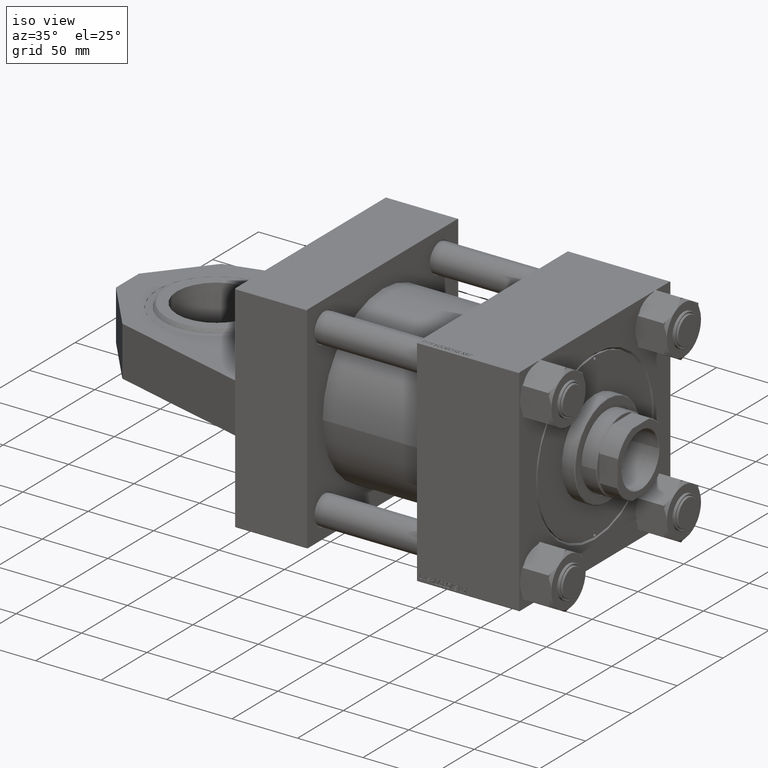
[diagram: clean part render]
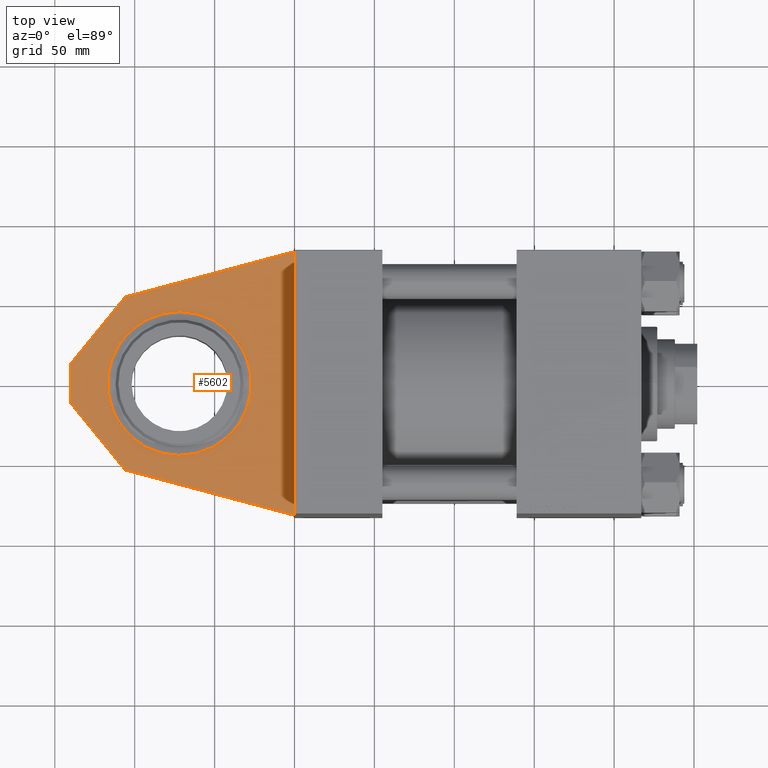
[diagram: tour spotlight — one face highlighted and labeled with its STEP entity id]
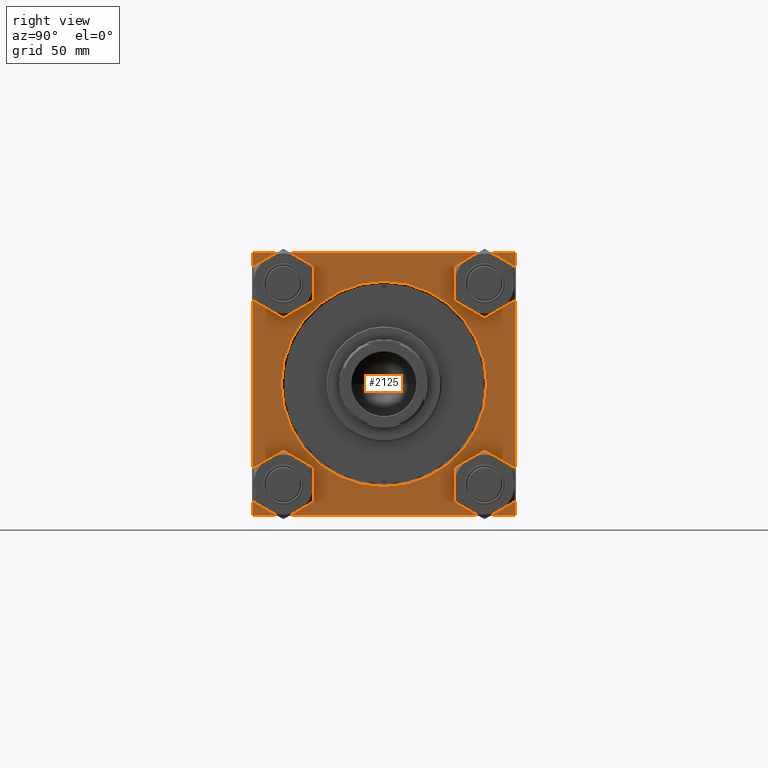
[diagram: tour spotlight — one face highlighted and labeled with its STEP entity id]
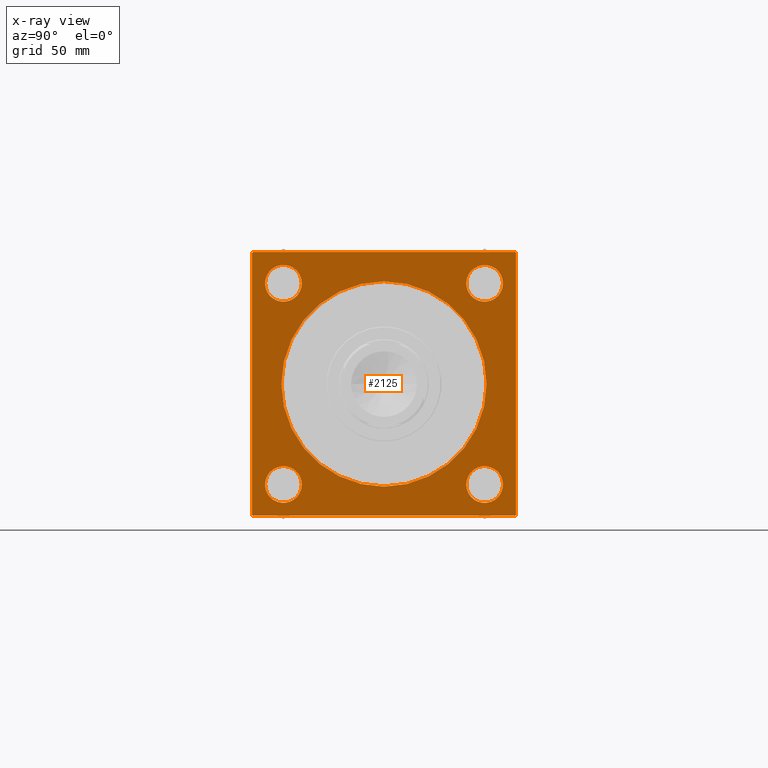
[diagram: x-ray of the same camera — body ghosted, this tour face saturated]
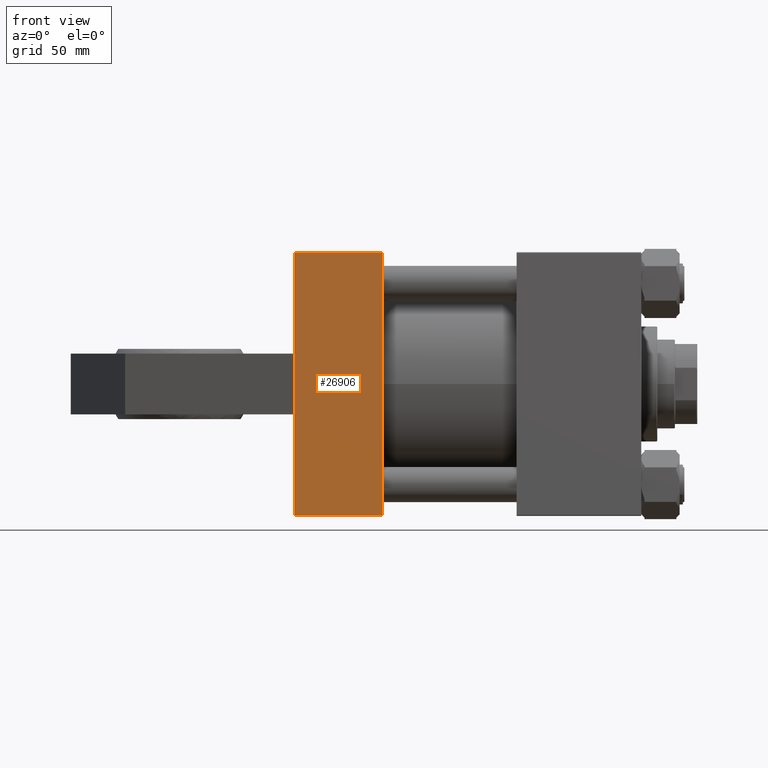
[diagram: tour spotlight — one face highlighted and labeled with its STEP entity id]
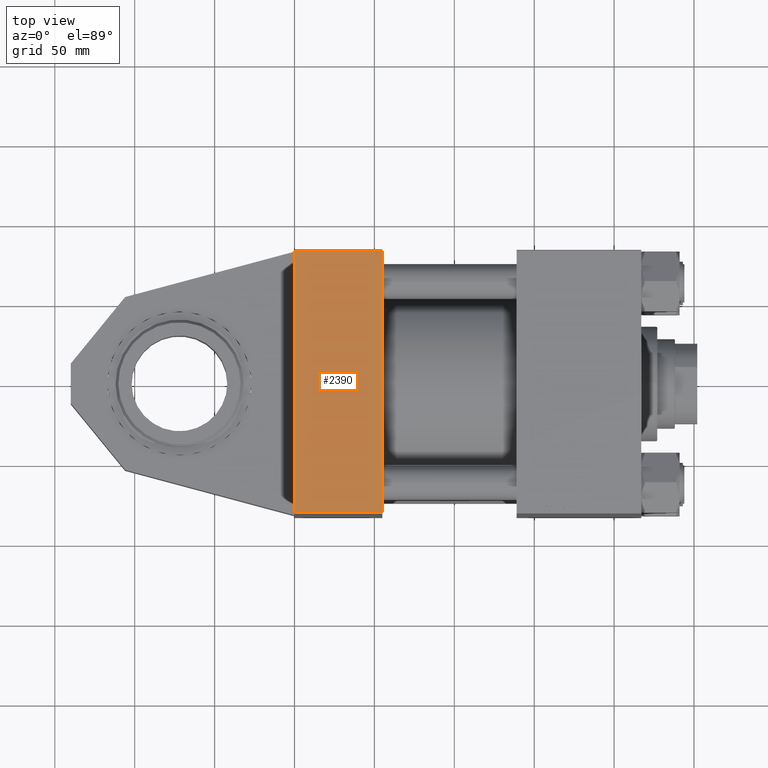
[diagram: tour spotlight — one face highlighted and labeled with its STEP entity id]
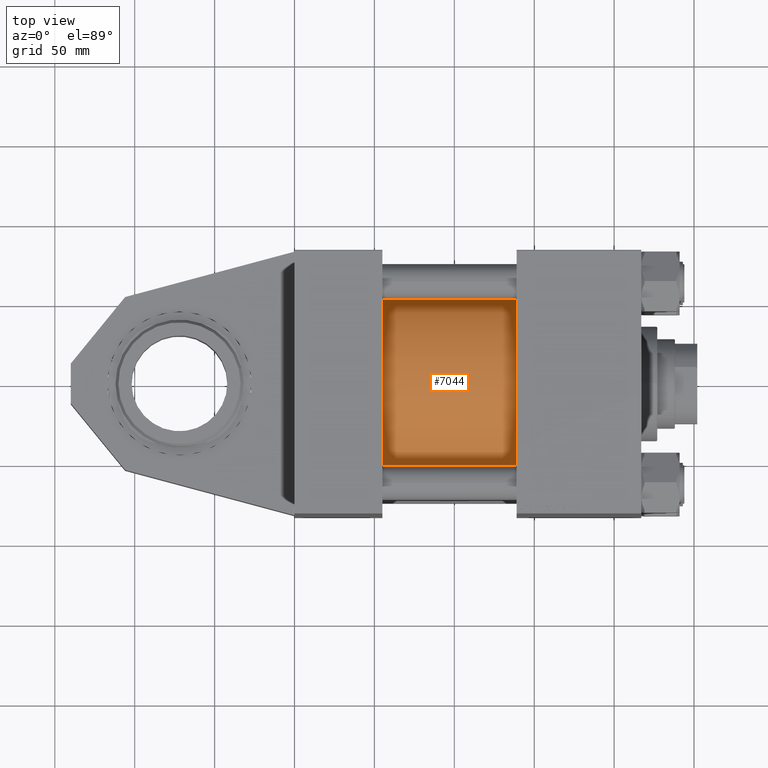
[diagram: tour spotlight — one face highlighted and labeled with its STEP entity id]
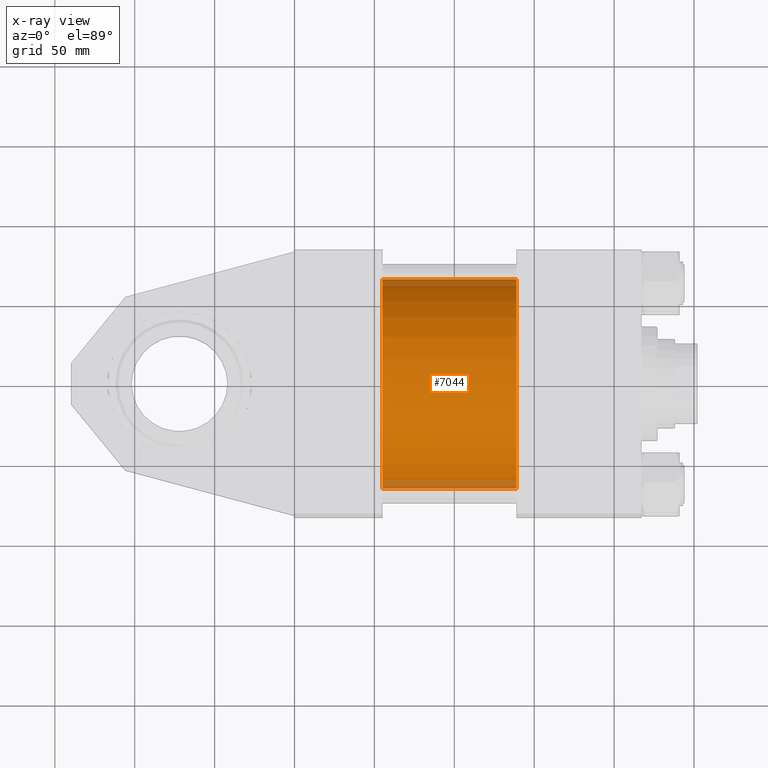
[diagram: x-ray of the same camera — body ghosted, this tour face saturated]
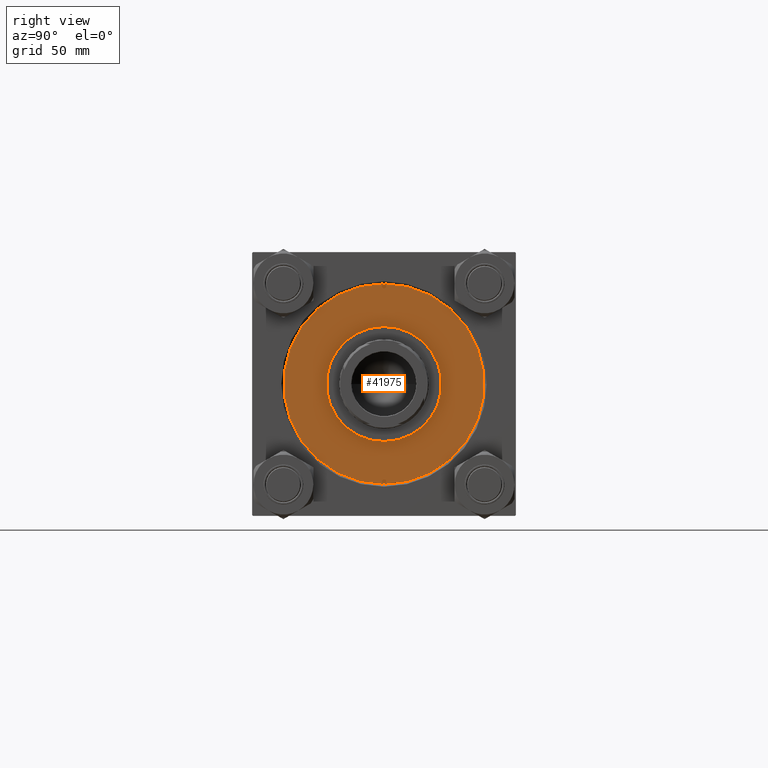
[diagram: tour spotlight — one face highlighted and labeled with its STEP entity id]
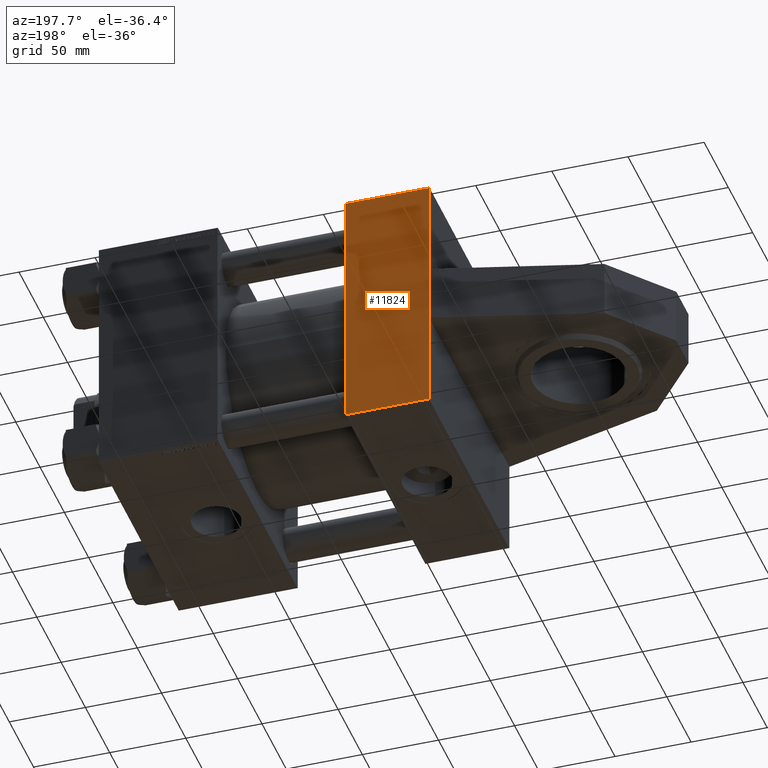
[diagram: tour spotlight — one face highlighted and labeled with its STEP entity id]
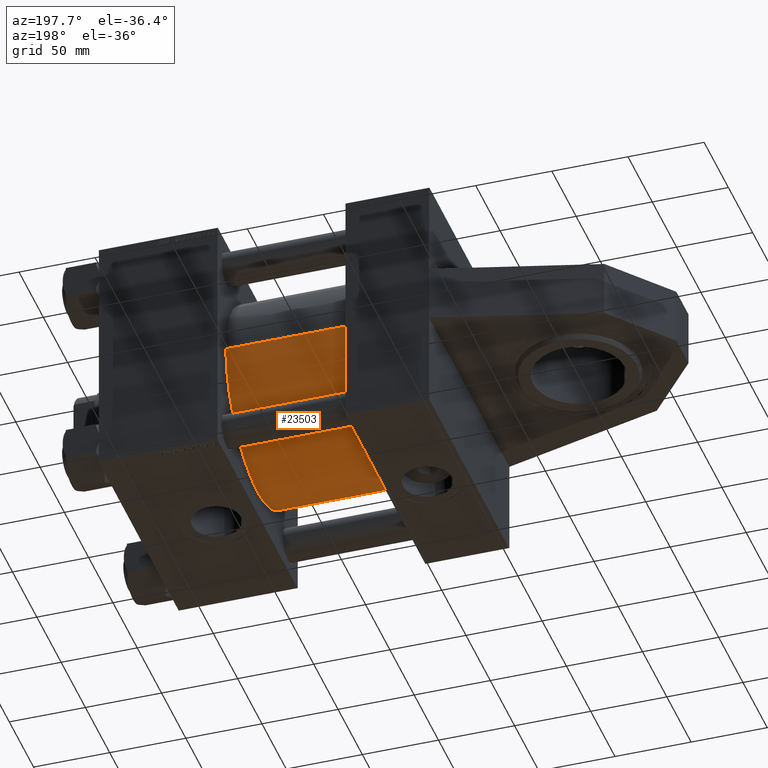
[diagram: tour spotlight — one face highlighted and labeled with its STEP entity id]
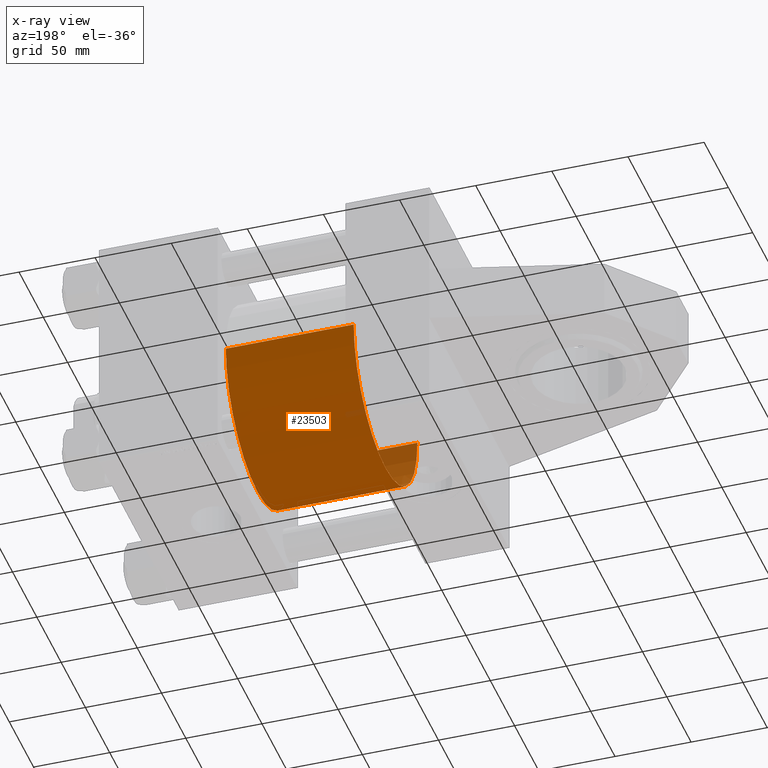
[diagram: x-ray of the same camera — body ghosted, this tour face saturated]
A machine part: a face-by-face anatomy tour. The part has 1193 B-rep faces; the first image is the clean iso view, then the 8 largest visible faces are spotlighted one at a time (largest first), each with its STEP entity span.

Face 1 — top view, entity #5602. In plain terms, the highlighted planar face has unit normal (0, 0, 1).
Definition (entity closure, byte-faithful):
#1561 = CARTESIAN_POINT ( 'NONE',  ( -72.00000000000000000, 19.00000000000000000, 1.040834085586084257E-14 ) ) ;
#1888 = VERTEX_POINT ( 'NONE', #20398 ) ;
#1943 = DIRECTION ( 'NONE',  ( 0.000000000000000000, 0.000000000000000000, 1.000000000000000000 ) ) ;
#2130 = VERTEX_POINT ( 'NONE', #27751 ) ;
#2480 = LINE ( 'NONE', #30198, #21303 ) ;
#3027 = CIRCLE ( 'NONE', #17781, 45.00000000000000000 ) ;
#3231 = VERTEX_POINT ( 'NONE', #6912 ) ;
#3421 = LINE ( 'NONE', #23934, #29330 ) ;
#3424 = VECTOR ( 'NONE', #12537, 1000.000000000000114 ) ;
#4038 = ORIENTED_EDGE ( 'NONE', *, *, #40837, .T. ) ;
#5602 = ADVANCED_FACE ( 'NONE', ( #15378, #35892 ), #46704, .T. ) ;
#5608 = ORIENTED_EDGE ( 'NONE', *, *, #48832, .T. ) ;
#6912 = CARTESIAN_POINT ( 'NONE',  ( -72.00000000000000000, 19.00000000000000000, -45.00000000000000000 ) ) ;
#7690 = ORIENTED_EDGE ( 'NONE', *, *, #18570, .T. ) ;
#7791 = DIRECTION ( 'NONE',  ( 0.9659258262890672020, 0.000000000000000000, 0.2588190451025246808 ) ) ;
#9179 = CARTESIAN_POINT ( 'NONE',  ( -140.0000000000000000, 19.00000000000000000, 12.50000000000001599 ) ) ;
#9255 = EDGE_CURVE ( 'NONE', #42104, #16631, #20677, .T. ) ;
#10416 = CARTESIAN_POINT ( 'NONE',  ( 0.000000000000000000, 19.00000000000000000, 82.50000000000001421 ) ) ;
#12166 = EDGE_CURVE ( 'NONE', #41112, #1888, #3421, .T. ) ;
#12537 = DIRECTION ( 'NONE',  ( 0.6328561221851576324, 0.000000000000000000, 0.7742694160386065505 ) ) ;
#12998 = CARTESIAN_POINT ( 'NONE',  ( -72.00000000000000000, 19.00000000000000000, 1.040834085586084257E-14 ) ) ;
#13247 = EDGE_LOOP ( 'NONE', ( #28508, #26433 ) ) ;
#13505 = DIRECTION ( 'NONE',  ( 0.000000000000000000, 1.000000000000000000, 0.000000000000000000 ) ) ;
#15378 = FACE_BOUND ( 'NONE', #13247, .T. ) ;
#16577 = CARTESIAN_POINT ( 'NONE',  ( -106.0000000000000142, 19.00000000000000000, -54.09738560230051974 ) ) ;
#16631 = VERTEX_POINT ( 'NONE', #36350 ) ;
#17383 = LINE ( 'NONE', #9179, #3424 ) ;
#17406 = LINE ( 'NONE', #37172, #32582 ) ;
#17781 = AXIS2_PLACEMENT_3D ( 'NONE', #12998, #13505, #1943 ) ;
#18376 = DIRECTION ( 'NONE',  ( 0.000000000000000000, 0.000000000000000000, -1.000000000000000000 ) ) ;
#18570 = EDGE_CURVE ( 'NONE', #1888, #34092, #29673, .T. ) ;
#20398 = CARTESIAN_POINT ( 'NONE',  ( 0.000000000000000000, 19.00000000000000000, 82.50000000000001421 ) ) ;
#20677 = LINE ( 'NONE', #27880, #21857 ) ;
#21303 = VECTOR ( 'NONE', #49458, 1000.000000000000000 ) ;
#21857 = VECTOR ( 'NONE', #35337, 1000.000000000000000 ) ;
#22171 = EDGE_CURVE ( 'NONE', #2130, #3231, #45143, .T. ) ;
#22920 = CARTESIAN_POINT ( 'NONE',  ( 0.000000000000000000, 19.00000000000000000, -82.50000000000000000 ) ) ;
#22994 = AXIS2_PLACEMENT_3D ( 'NONE', #1561, #33106, #36977 ) ;
#23934 = CARTESIAN_POINT ( 'NONE',  ( -106.0000000000000142, 19.00000000000000000, 54.09738560230054816 ) ) ;
#24197 = AXIS2_PLACEMENT_3D ( 'NONE', #43363, #35403, #39256 ) ;
#26433 = ORIENTED_EDGE ( 'NONE', *, *, #29546, .F. ) ;
#27751 = CARTESIAN_POINT ( 'NONE',  ( -72.00000000000000000, 19.00000000000000000, 45.00000000000001421 ) ) ;
#27880 = CARTESIAN_POINT ( 'NONE',  ( -140.0000000000000000, 19.00000000000000000, -12.49999999999998579 ) ) ;
#28508 = ORIENTED_EDGE ( 'NONE', *, *, #22171, .F. ) ;
#28962 = DIRECTION ( 'NONE',  ( -0.9659258262890672020, -0.000000000000000000, 0.2588190451025247918 ) ) ;
#29330 = VECTOR ( 'NONE', #7791, 1000.000000000000000 ) ;
#29546 = EDGE_CURVE ( 'NONE', #3231, #2130, #3027, .T. ) ;
#29673 = LINE ( 'NONE', #10416, #38464 ) ;
#29784 = ORIENTED_EDGE ( 'NONE', *, *, #36009, .T. ) ;
#29875 = CARTESIAN_POINT ( 'NONE',  ( -106.0000000000000142, 19.00000000000000000, 54.09738560230054816 ) ) ;
#30198 = CARTESIAN_POINT ( 'NONE',  ( -140.0000000000000000, 19.00000000000000000, -12.49999999999998579 ) ) ;
#32582 = VECTOR ( 'NONE', #28962, 1000.000000000000000 ) ;
#33106 = DIRECTION ( 'NONE',  ( 0.000000000000000000, 1.000000000000000000, 0.000000000000000000 ) ) ;
#34092 = VERTEX_POINT ( 'NONE', #22920 ) ;
#35337 = DIRECTION ( 'NONE',  ( -0.6328561221851576324, -0.000000000000000000, 0.7742694160386065505 ) ) ;
#35403 = DIRECTION ( 'NONE',  ( -0.000000000000000000, 1.000000000000000000, 0.000000000000000000 ) ) ;
#35892 = FACE_OUTER_BOUND ( 'NONE', #41885, .T. ) ;
#36009 = EDGE_CURVE ( 'NONE', #34092, #42104, #17406, .T. ) ;
#36350 = CARTESIAN_POINT ( 'NONE',  ( -140.0000000000000000, 19.00000000000000000, -12.49999999999998579 ) ) ;
#36977 = DIRECTION ( 'NONE',  ( 0.000000000000000000, 0.000000000000000000, 1.000000000000000000 ) ) ;
#37172 = CARTESIAN_POINT ( 'NONE',  ( -106.0000000000000142, 19.00000000000000000, -54.09738560230051974 ) ) ;
#38464 = VECTOR ( 'NONE', #18376, 1000.000000000000000 ) ;
#39256 = DIRECTION ( 'NONE',  ( 0.000000000000000000, -0.000000000000000000, 1.000000000000000000 ) ) ;
#40298 = ORIENTED_EDGE ( 'NONE', *, *, #12166, .T. ) ;
#40837 = EDGE_CURVE ( 'NONE', #16631, #47127, #2480, .T. ) ;
#41112 = VERTEX_POINT ( 'NONE', #29875 ) ;
#41885 = EDGE_LOOP ( 'NONE', ( #5608, #40298, #7690, #29784, #42408, #4038 ) ) ;
#42104 = VERTEX_POINT ( 'NONE', #16577 ) ;
#42408 = ORIENTED_EDGE ( 'NONE', *, *, #9255, .T. ) ;
#43363 = CARTESIAN_POINT ( 'NONE',  ( 0.000000000000000000, 19.00000000000000000, 0.000000000000000000 ) ) ;
#45143 = CIRCLE ( 'NONE', #22994, 45.00000000000000000 ) ;
#46704 = PLANE ( 'NONE',  #24197 ) ;
#47127 = VERTEX_POINT ( 'NONE', #50494 ) ;
#48832 = EDGE_CURVE ( 'NONE', #47127, #41112, #17383, .T. ) ;
#49458 = DIRECTION ( 'NONE',  ( 0.000000000000000000, 0.000000000000000000, 1.000000000000000000 ) ) ;
#50494 = CARTESIAN_POINT ( 'NONE',  ( -140.0000000000000000, 19.00000000000000000, 12.50000000000001599 ) ) ;

Face 2 — right view, entity #2125. An x-ray twin of the same camera follows (body ghosted, this face saturated) — the face is partly hidden behind the body. In plain terms, the highlighted planar face has unit normal (-1, -0, 0).
Definition (entity closure, byte-faithful):
#274 = VERTEX_POINT ( 'NONE', #44950 ) ;
#332 = ORIENTED_EDGE ( 'NONE', *, *, #4217, .T. ) ;
#410 = EDGE_CURVE ( 'NONE', #8727, #34787, #43037, .T. ) ;
#1286 = VECTOR ( 'NONE', #46509, 1000.000000000000000 ) ;
#1564 = DIRECTION ( 'NONE',  ( -0.000000000000000000, 0.7071067811865474617, 0.7071067811865474617 ) ) ;
#1625 = CARTESIAN_POINT ( 'NONE',  ( 217.0000000000000284, -82.49999999999997158, 82.49999999999997158 ) ) ;
#1711 = CARTESIAN_POINT ( 'NONE',  ( 217.0000000000000284, 82.50000000000001421, -82.00000000000005684 ) ) ;
#2125 = ADVANCED_FACE ( 'NONE', ( #8502, #24131, #15701, #47266, #24382, #31341 ), #4639, .F. ) ;
#2162 = VERTEX_POINT ( 'NONE', #43670 ) ;
#2542 = AXIS2_PLACEMENT_3D ( 'NONE', #3274, #7384, #18930 ) ;
#2778 = CARTESIAN_POINT ( 'NONE',  ( 217.0000000000000284, 62.95000000000000284, -62.95000000000000284 ) ) ;
#3029 = DIRECTION ( 'NONE',  ( -1.000000000000000000, -0.000000000000000000, 0.000000000000000000 ) ) ;
#3274 = CARTESIAN_POINT ( 'NONE',  ( 217.0000000000000284, 62.95000000000000284, -62.95000000000000284 ) ) ;
#4171 = LINE ( 'NONE', #20080, #17485 ) ;
#4217 = EDGE_CURVE ( 'NONE', #15046, #37520, #20566, .T. ) ;
#4639 = PLANE ( 'NONE',  #11816 ) ;
#4640 = CARTESIAN_POINT ( 'NONE',  ( 217.0000000000000284, 7.868355684521741158E-15, 64.24999999999997158 ) ) ;
#4782 = EDGE_LOOP ( 'NONE', ( #6643, #32309 ) ) ;
#4856 = CARTESIAN_POINT ( 'NONE',  ( 217.0000000000000284, 0.000000000000000000, 0.000000000000000000 ) ) ;
#5140 = CARTESIAN_POINT ( 'NONE',  ( 217.0000000000000284, 0.000000000000000000, 0.000000000000000000 ) ) ;
#5321 = ORIENTED_EDGE ( 'NONE', *, *, #23581, .T. ) ;
#6423 = EDGE_CURVE ( 'NONE', #15046, #17958, #14940, .T. ) ;
#6643 = ORIENTED_EDGE ( 'NONE', *, *, #31759, .T. ) ;
#7172 = EDGE_CURVE ( 'NONE', #11798, #25430, #36531, .T. ) ;
#7316 = DIRECTION ( 'NONE',  ( 0.000000000000000000, 0.000000000000000000, 1.000000000000000000 ) ) ;
#7338 = ORIENTED_EDGE ( 'NONE', *, *, #15463, .T. ) ;
#7384 = DIRECTION ( 'NONE',  ( -1.000000000000000000, -0.000000000000000000, 0.000000000000000000 ) ) ;
#8196 = ORIENTED_EDGE ( 'NONE', *, *, #29011, .T. ) ;
#8304 = CARTESIAN_POINT ( 'NONE',  ( 217.0000000000000284, 0.000000000000000000, 0.000000000000000000 ) ) ;
#8502 = FACE_BOUND ( 'NONE', #38094, .T. ) ;
#8550 = DIRECTION ( 'NONE',  ( 0.000000000000000000, 0.000000000000000000, 1.000000000000000000 ) ) ;
#8727 = VERTEX_POINT ( 'NONE', #4640 ) ;
#8942 = CARTESIAN_POINT ( 'NONE',  ( 217.0000000000000284, 62.95000000000000284, 74.44999999999996021 ) ) ;
#9261 = CARTESIAN_POINT ( 'NONE',  ( 217.0000000000000284, 82.50000000000001421, -82.00000000000005684 ) ) ;
#9350 = LINE ( 'NONE', #17801, #13417 ) ;
#9580 = VECTOR ( 'NONE', #34974, 1000.000000000000000 ) ;
#9660 = AXIS2_PLACEMENT_3D ( 'NONE', #8304, #43718, #8550 ) ;
#11232 = AXIS2_PLACEMENT_3D ( 'NONE', #2778, #3029, #26369 ) ;
#11486 = DIRECTION ( 'NONE',  ( 0.000000000000000000, 0.000000000000000000, 1.000000000000000000 ) ) ;
#11494 = ORIENTED_EDGE ( 'NONE', *, *, #48077, .T. ) ;
#11497 = CARTESIAN_POINT ( 'NONE',  ( 217.0000000000000284, 62.95000000000000284, -51.45000000000005258 ) ) ;
#11798 = VERTEX_POINT ( 'NONE', #43520 ) ;
#11816 = AXIS2_PLACEMENT_3D ( 'NONE', #5140, #19805, #35202 ) ;
#12750 = CARTESIAN_POINT ( 'NONE',  ( 217.0000000000000284, 82.50000000000001421, 82.50000000000000000 ) ) ;
#13417 = VECTOR ( 'NONE', #44523, 999.9999999999998863 ) ;
#13990 = VERTEX_POINT ( 'NONE', #11497 ) ;
#14726 = DIRECTION ( 'NONE',  ( -1.000000000000000000, -0.000000000000000000, 0.000000000000000000 ) ) ;
#14940 = LINE ( 'NONE', #15454, #1286 ) ;
#15046 = VERTEX_POINT ( 'NONE', #33016 ) ;
#15435 = EDGE_LOOP ( 'NONE', ( #18912, #8196 ) ) ;
#15454 = CARTESIAN_POINT ( 'NONE',  ( 217.0000000000000284, 82.50000000000001421, -82.50000000000002842 ) ) ;
#15463 = EDGE_CURVE ( 'NONE', #49989, #2162, #26128, .T. ) ;
#15701 = FACE_BOUND ( 'NONE', #30693, .T. ) ;
#15732 = DIRECTION ( 'NONE',  ( 0.000000000000000000, -0.7071067811865474617, 0.7071067811865474617 ) ) ;
#15990 = ORIENTED_EDGE ( 'NONE', *, *, #26081, .T. ) ;
#16323 = CARTESIAN_POINT ( 'NONE',  ( 217.0000000000000284, -62.94999999999998863, 62.94999999999998863 ) ) ;
#16701 = ORIENTED_EDGE ( 'NONE', *, *, #32527, .T. ) ;
#17280 = DIRECTION ( 'NONE',  ( 0.000000000000000000, -1.682156097916903834E-16, -1.000000000000000000 ) ) ;
#17485 = VECTOR ( 'NONE', #15732, 1000.000000000000114 ) ;
#17704 = EDGE_CURVE ( 'NONE', #42545, #50785, #40883, .T. ) ;
#17801 = CARTESIAN_POINT ( 'NONE',  ( 217.0000000000000284, -82.00000000000004263, -82.50000000000002842 ) ) ;
#17958 = VERTEX_POINT ( 'NONE', #29341 ) ;
#18113 = DIRECTION ( 'NONE',  ( -1.000000000000000000, -0.000000000000000000, 0.000000000000000000 ) ) ;
#18462 = DIRECTION ( 'NONE',  ( -0.000000000000000000, -0.7071067811865573427, -0.7071067811865376918 ) ) ;
#18912 = ORIENTED_EDGE ( 'NONE', *, *, #48445, .T. ) ;
#18930 = DIRECTION ( 'NONE',  ( 0.000000000000000000, 0.000000000000000000, 1.000000000000000000 ) ) ;
#19805 = DIRECTION ( 'NONE',  ( -1.000000000000000000, -0.000000000000000000, 0.000000000000000000 ) ) ;
#19831 = VECTOR ( 'NONE', #18462, 1000.000000000000114 ) ;
#19955 = ORIENTED_EDGE ( 'NONE', *, *, #17704, .T. ) ;
#20023 = DIRECTION ( 'NONE',  ( 0.000000000000000000, 0.000000000000000000, 1.000000000000000000 ) ) ;
#20080 = CARTESIAN_POINT ( 'NONE',  ( 217.0000000000000284, 82.00000000000004263, 82.50000000000000000 ) ) ;
#20566 = LINE ( 'NONE', #9261, #35632 ) ;
#20777 = ORIENTED_EDGE ( 'NONE', *, *, #30158, .T. ) ;
#21403 = AXIS2_PLACEMENT_3D ( 'NONE', #46661, #22515, #11486 ) ;
#21405 = ORIENTED_EDGE ( 'NONE', *, *, #6423, .F. ) ;
#21655 = CARTESIAN_POINT ( 'NONE',  ( 217.0000000000000284, -62.95000000000001705, -62.95000000000000284 ) ) ;
#22515 = DIRECTION ( 'NONE',  ( -1.000000000000000000, -0.000000000000000000, 0.000000000000000000 ) ) ;
#23581 = EDGE_CURVE ( 'NONE', #35268, #13990, #30437, .T. ) ;
#23691 = EDGE_CURVE ( 'NONE', #39769, #37520, #32005, .T. ) ;
#24131 = FACE_BOUND ( 'NONE', #43948, .T. ) ;
#24382 = FACE_BOUND ( 'NONE', #4782, .T. ) ;
#24458 = CARTESIAN_POINT ( 'NONE',  ( 217.0000000000000284, 82.00000000000004263, 82.50000000000000000 ) ) ;
#24941 = EDGE_CURVE ( 'NONE', #25230, #11798, #25642, .T. ) ;
#25230 = VERTEX_POINT ( 'NONE', #44744 ) ;
#25430 = VERTEX_POINT ( 'NONE', #43688 ) ;
#25642 = LINE ( 'NONE', #33349, #19831 ) ;
#25837 = ORIENTED_EDGE ( 'NONE', *, *, #7172, .T. ) ;
#25908 = CARTESIAN_POINT ( 'NONE',  ( 217.0000000000000284, 62.95000000000000284, 62.95000000000000284 ) ) ;
#25934 = AXIS2_PLACEMENT_3D ( 'NONE', #16323, #31976, #28116 ) ;
#26081 = EDGE_CURVE ( 'NONE', #39769, #42246, #4171, .T. ) ;
#26128 = CIRCLE ( 'NONE', #50758, 11.49999999999995381 ) ;
#26369 = DIRECTION ( 'NONE',  ( 0.000000000000000000, 0.000000000000000000, 1.000000000000000000 ) ) ;
#26548 = DIRECTION ( 'NONE',  ( -1.000000000000000000, -0.000000000000000000, 0.000000000000000000 ) ) ;
#26747 = CIRCLE ( 'NONE', #9660, 64.24999999999997158 ) ;
#27012 = ORIENTED_EDGE ( 'NONE', *, *, #24941, .T. ) ;
#27107 = EDGE_CURVE ( 'NONE', #25430, #17958, #9350, .T. ) ;
#27530 = ORIENTED_EDGE ( 'NONE', *, *, #29991, .T. ) ;
#28116 = DIRECTION ( 'NONE',  ( 0.000000000000000000, 0.000000000000000000, 1.000000000000000000 ) ) ;
#28444 = CIRCLE ( 'NONE', #11232, 11.49999999999995381 ) ;
#29011 = EDGE_CURVE ( 'NONE', #41916, #274, #44800, .T. ) ;
#29127 = CARTESIAN_POINT ( 'NONE',  ( 217.0000000000000284, -62.95000000000001705, -51.45000000000005258 ) ) ;
#29158 = DIRECTION ( 'NONE',  ( 0.000000000000000000, 0.000000000000000000, 1.000000000000000000 ) ) ;
#29319 = AXIS2_PLACEMENT_3D ( 'NONE', #25908, #41591, #20023 ) ;
#29341 = CARTESIAN_POINT ( 'NONE',  ( 217.0000000000000284, -82.00000000000004263, -82.50000000000002842 ) ) ;
#29392 = EDGE_LOOP ( 'NONE', ( #25837, #50214, #21405, #332, #46324, #15990, #27530, #27012 ) ) ;
#29403 = AXIS2_PLACEMENT_3D ( 'NONE', #29408, #18113, #29158 ) ;
#29408 = CARTESIAN_POINT ( 'NONE',  ( 217.0000000000000284, 62.95000000000000284, 62.95000000000000284 ) ) ;
#29591 = CARTESIAN_POINT ( 'NONE',  ( 217.0000000000000284, 82.50000000000001421, 82.50000000000000000 ) ) ;
#29991 = EDGE_CURVE ( 'NONE', #42246, #25230, #33436, .T. ) ;
#30158 = EDGE_CURVE ( 'NONE', #13990, #35268, #28444, .T. ) ;
#30437 = CIRCLE ( 'NONE', #2542, 11.49999999999995381 ) ;
#30693 = EDGE_LOOP ( 'NONE', ( #19955, #16701 ) ) ;
#31341 = FACE_OUTER_BOUND ( 'NONE', #29392, .T. ) ;
#31653 = CARTESIAN_POINT ( 'NONE',  ( 217.0000000000000284, 82.50000000000001421, 82.00000000000002842 ) ) ;
#31677 = CIRCLE ( 'NONE', #29319, 11.49999999999995381 ) ;
#31759 = EDGE_CURVE ( 'NONE', #34787, #8727, #26747, .T. ) ;
#31976 = DIRECTION ( 'NONE',  ( -1.000000000000000000, -0.000000000000000000, 0.000000000000000000 ) ) ;
#32005 = LINE ( 'NONE', #12750, #40306 ) ;
#32258 = DIRECTION ( 'NONE',  ( 0.000000000000000000, 0.000000000000000000, -1.000000000000000000 ) ) ;
#32309 = ORIENTED_EDGE ( 'NONE', *, *, #410, .T. ) ;
#32527 = EDGE_CURVE ( 'NONE', #50785, #42545, #31677, .T. ) ;
#32809 = DIRECTION ( 'NONE',  ( 0.000000000000000000, 0.000000000000000000, 1.000000000000000000 ) ) ;
#33016 = CARTESIAN_POINT ( 'NONE',  ( 217.0000000000000284, 82.00000000000004263, -82.50000000000002842 ) ) ;
#33169 = CARTESIAN_POINT ( 'NONE',  ( 217.0000000000000284, 62.95000000000000284, -74.44999999999996021 ) ) ;
#33349 = CARTESIAN_POINT ( 'NONE',  ( 217.0000000000000284, -82.49999999999997158, 81.99999999999991473 ) ) ;
#33436 = LINE ( 'NONE', #29591, #9580 ) ;
#34787 = VERTEX_POINT ( 'NONE', #50553 ) ;
#34974 = DIRECTION ( 'NONE',  ( 0.000000000000000000, -1.000000000000000000, -1.682156097916904081E-16 ) ) ;
#35202 = DIRECTION ( 'NONE',  ( 0.000000000000000000, 0.000000000000000000, 1.000000000000000000 ) ) ;
#35268 = VERTEX_POINT ( 'NONE', #33169 ) ;
#35592 = CARTESIAN_POINT ( 'NONE',  ( 217.0000000000000284, -62.94999999999998863, 74.44999999999994600 ) ) ;
#35632 = VECTOR ( 'NONE', #1564, 1000.000000000000114 ) ;
#35675 = DIRECTION ( 'NONE',  ( -1.000000000000000000, -0.000000000000000000, 0.000000000000000000 ) ) ;
#36531 = LINE ( 'NONE', #1625, #44777 ) ;
#37520 = VERTEX_POINT ( 'NONE', #1711 ) ;
#38094 = EDGE_LOOP ( 'NONE', ( #11494, #7338 ) ) ;
#38930 = AXIS2_PLACEMENT_3D ( 'NONE', #4856, #35675, #32809 ) ;
#39769 = VERTEX_POINT ( 'NONE', #31653 ) ;
#40306 = VECTOR ( 'NONE', #32258, 1000.000000000000000 ) ;
#40883 = CIRCLE ( 'NONE', #29403, 11.49999999999995381 ) ;
#41591 = DIRECTION ( 'NONE',  ( -1.000000000000000000, -0.000000000000000000, 0.000000000000000000 ) ) ;
#41676 = DIRECTION ( 'NONE',  ( 0.000000000000000000, 0.000000000000000000, 1.000000000000000000 ) ) ;
#41888 = CIRCLE ( 'NONE', #21403, 11.49999999999995381 ) ;
#41916 = VERTEX_POINT ( 'NONE', #35592 ) ;
#42246 = VERTEX_POINT ( 'NONE', #24458 ) ;
#42545 = VERTEX_POINT ( 'NONE', #49033 ) ;
#43037 = CIRCLE ( 'NONE', #38930, 64.24999999999997158 ) ;
#43520 = CARTESIAN_POINT ( 'NONE',  ( 217.0000000000000284, -82.49999999999997158, 81.99999999999991473 ) ) ;
#43670 = CARTESIAN_POINT ( 'NONE',  ( 217.0000000000000284, -62.95000000000001705, -74.44999999999996021 ) ) ;
#43688 = CARTESIAN_POINT ( 'NONE',  ( 217.0000000000000284, -82.50000000000000000, -82.00000000000005684 ) ) ;
#43718 = DIRECTION ( 'NONE',  ( -1.000000000000000000, -0.000000000000000000, 0.000000000000000000 ) ) ;
#43948 = EDGE_LOOP ( 'NONE', ( #5321, #20777 ) ) ;
#44523 = DIRECTION ( 'NONE',  ( 0.000000000000000000, 0.7071067811865376918, -0.7071067811865574537 ) ) ;
#44744 = CARTESIAN_POINT ( 'NONE',  ( 217.0000000000000284, -81.99999999999990052, 82.49999999999997158 ) ) ;
#44777 = VECTOR ( 'NONE', #17280, 1000.000000000000000 ) ;
#44800 = CIRCLE ( 'NONE', #25934, 11.49999999999995381 ) ;
#44950 = CARTESIAN_POINT ( 'NONE',  ( 217.0000000000000284, -62.94999999999998863, 51.45000000000003837 ) ) ;
#45228 = CIRCLE ( 'NONE', #47700, 11.49999999999995381 ) ;
#46324 = ORIENTED_EDGE ( 'NONE', *, *, #23691, .F. ) ;
#46509 = DIRECTION ( 'NONE',  ( 0.000000000000000000, -1.000000000000000000, 0.000000000000000000 ) ) ;
#46591 = CARTESIAN_POINT ( 'NONE',  ( 217.0000000000000284, -62.94999999999998863, 62.94999999999998863 ) ) ;
#46661 = CARTESIAN_POINT ( 'NONE',  ( 217.0000000000000284, -62.95000000000001705, -62.95000000000000284 ) ) ;
#47266 = FACE_BOUND ( 'NONE', #15435, .T. ) ;
#47700 = AXIS2_PLACEMENT_3D ( 'NONE', #46591, #26548, #7316 ) ;
#48077 = EDGE_CURVE ( 'NONE', #2162, #49989, #41888, .T. ) ;
#48445 = EDGE_CURVE ( 'NONE', #274, #41916, #45228, .T. ) ;
#49033 = CARTESIAN_POINT ( 'NONE',  ( 217.0000000000000284, 62.95000000000000284, 51.45000000000005258 ) ) ;
#49989 = VERTEX_POINT ( 'NONE', #29127 ) ;
#50214 = ORIENTED_EDGE ( 'NONE', *, *, #27107, .T. ) ;
#50553 = CARTESIAN_POINT ( 'NONE',  ( 217.0000000000000284, 0.000000000000000000, -64.24999999999997158 ) ) ;
#50758 = AXIS2_PLACEMENT_3D ( 'NONE', #21655, #14726, #41676 ) ;
#50785 = VERTEX_POINT ( 'NONE', #8942 ) ;

Face 3 — front view, entity #26906. In plain terms, the highlighted planar face has unit normal (0, 1, 0).
Definition (entity closure, byte-faithful):
#511 = CARTESIAN_POINT ( 'NONE',  ( 0.000000000000000000, 82.00000000000005684, 82.50000000000002842 ) ) ;
#721 = VERTEX_POINT ( 'NONE', #24541 ) ;
#1167 = CARTESIAN_POINT ( 'NONE',  ( 0.000000000000000000, 82.50000000000002842, 82.50000000000002842 ) ) ;
#1888 = VERTEX_POINT ( 'NONE', #20398 ) ;
#2277 = VECTOR ( 'NONE', #20073, 1000.000000000000000 ) ;
#2752 = EDGE_CURVE ( 'NONE', #25981, #1888, #36330, .T. ) ;
#2802 = DIRECTION ( 'NONE',  ( 1.000000000000000000, 0.000000000000000000, 0.000000000000000000 ) ) ;
#3308 = CARTESIAN_POINT ( 'NONE',  ( 55.00000000000000000, -81.99999999999997158, 82.50000000000001421 ) ) ;
#5444 = EDGE_CURVE ( 'NONE', #721, #43808, #14609, .T. ) ;
#5839 = VECTOR ( 'NONE', #33116, 1000.000000000000000 ) ;
#7073 = FACE_OUTER_BOUND ( 'NONE', #43509, .T. ) ;
#7115 = ORIENTED_EDGE ( 'NONE', *, *, #10690, .T. ) ;
#7569 = CARTESIAN_POINT ( 'NONE',  ( 55.00000000000000000, -81.99999999999997158, 82.50000000000001421 ) ) ;
#10294 = EDGE_CURVE ( 'NONE', #31936, #25981, #24103, .T. ) ;
#10690 = EDGE_CURVE ( 'NONE', #20062, #721, #39966, .T. ) ;
#10790 = ORIENTED_EDGE ( 'NONE', *, *, #44278, .F. ) ;
#13813 = ORIENTED_EDGE ( 'NONE', *, *, #35512, .F. ) ;
#14609 = LINE ( 'NONE', #3308, #38967 ) ;
#15977 = LINE ( 'NONE', #48293, #2277 ) ;
#16420 = ORIENTED_EDGE ( 'NONE', *, *, #10294, .T. ) ;
#18252 = CARTESIAN_POINT ( 'NONE',  ( 55.00000000000000000, 82.00000000000005684, 82.50000000000002842 ) ) ;
#18881 = CARTESIAN_POINT ( 'NONE',  ( 55.00000000000000000, 82.50000000000002842, 82.50000000000002842 ) ) ;
#19137 = AXIS2_PLACEMENT_3D ( 'NONE', #18881, #34283, #27085 ) ;
#20062 = VERTEX_POINT ( 'NONE', #41189 ) ;
#20073 = DIRECTION ( 'NONE',  ( 0.000000000000000000, 1.000000000000000000, 0.000000000000000000 ) ) ;
#20398 = CARTESIAN_POINT ( 'NONE',  ( 0.000000000000000000, 19.00000000000000000, 82.50000000000001421 ) ) ;
#22881 = ORIENTED_EDGE ( 'NONE', *, *, #5444, .T. ) ;
#24103 = LINE ( 'NONE', #511, #37471 ) ;
#24541 = CARTESIAN_POINT ( 'NONE',  ( 0.000000000000000000, -81.99999999999997158, 82.50000000000001421 ) ) ;
#25158 = CARTESIAN_POINT ( 'NONE',  ( 55.00000000000000000, 82.50000000000002842, 82.50000000000002842 ) ) ;
#25981 = VERTEX_POINT ( 'NONE', #29144 ) ;
#26906 = ADVANCED_FACE ( 'NONE', ( #7073 ), #46612, .F. ) ;
#27085 = DIRECTION ( 'NONE',  ( 0.000000000000000000, 1.000000000000000000, 8.410780489584519171E-17 ) ) ;
#28461 = VECTOR ( 'NONE', #47918, 1000.000000000000000 ) ;
#29144 = CARTESIAN_POINT ( 'NONE',  ( 0.000000000000000000, 82.00000000000005684, 82.50000000000002842 ) ) ;
#29524 = LINE ( 'NONE', #25158, #5839 ) ;
#31936 = VERTEX_POINT ( 'NONE', #18252 ) ;
#32465 = DIRECTION ( 'NONE',  ( 0.000000000000000000, -1.000000000000000000, -8.410780489584519171E-17 ) ) ;
#33116 = DIRECTION ( 'NONE',  ( 0.000000000000000000, -1.000000000000000000, -8.410780489584519171E-17 ) ) ;
#34283 = DIRECTION ( 'NONE',  ( 0.000000000000000000, 8.410780489584519171E-17, -1.000000000000000000 ) ) ;
#35512 = EDGE_CURVE ( 'NONE', #20062, #1888, #15977, .T. ) ;
#36330 = LINE ( 'NONE', #1167, #40535 ) ;
#37471 = VECTOR ( 'NONE', #47234, 1000.000000000000000 ) ;
#38967 = VECTOR ( 'NONE', #2802, 1000.000000000000000 ) ;
#39966 = LINE ( 'NONE', #40467, #28461 ) ;
#40467 = CARTESIAN_POINT ( 'NONE',  ( 0.000000000000000000, 82.50000000000002842, 82.50000000000002842 ) ) ;
#40535 = VECTOR ( 'NONE', #32465, 1000.000000000000000 ) ;
#41189 = CARTESIAN_POINT ( 'NONE',  ( 0.000000000000000000, -19.00000000000000000, 82.50000000000001421 ) ) ;
#43509 = EDGE_LOOP ( 'NONE', ( #48040, #13813, #7115, #22881, #10790, #16420 ) ) ;
#43808 = VERTEX_POINT ( 'NONE', #7569 ) ;
#44278 = EDGE_CURVE ( 'NONE', #31936, #43808, #29524, .T. ) ;
#46612 = PLANE ( 'NONE',  #19137 ) ;
#47234 = DIRECTION ( 'NONE',  ( -1.000000000000000000, 0.000000000000000000, 0.000000000000000000 ) ) ;
#47918 = DIRECTION ( 'NONE',  ( 0.000000000000000000, -1.000000000000000000, -8.410780489584519171E-17 ) ) ;
#48040 = ORIENTED_EDGE ( 'NONE', *, *, #2752, .T. ) ;
#48293 = CARTESIAN_POINT ( 'NONE',  ( 0.000000000000000000, -19.00000000000000000, 82.50000000000001421 ) ) ;

Face 4 — top view, entity #2390. In plain terms, the highlighted planar face has unit normal (0, 0, 1).
Definition (entity closure, byte-faithful):
#483 = CARTESIAN_POINT ( 'NONE',  ( 55.00000000000000000, 82.50000000000002842, 82.50000000000002842 ) ) ;
#914 = EDGE_CURVE ( 'NONE', #14510, #22440, #26295, .T. ) ;
#2390 = ADVANCED_FACE ( 'NONE', ( #27683 ), #4827, .T. ) ;
#3722 = CARTESIAN_POINT ( 'NONE',  ( 55.00000000000000000, 82.50000000000002842, 82.50000000000002842 ) ) ;
#4043 = EDGE_CURVE ( 'NONE', #14450, #25375, #25957, .T. ) ;
#4827 = PLANE ( 'NONE',  #39703 ) ;
#6979 = LINE ( 'NONE', #41641, #26234 ) ;
#8021 = CARTESIAN_POINT ( 'NONE',  ( 0.000000000000000000, 82.50000000000002842, -82.00000000000000000 ) ) ;
#8194 = DIRECTION ( 'NONE',  ( -0.000000000000000000, 1.000000000000000000, 0.000000000000000000 ) ) ;
#11058 = VECTOR ( 'NONE', #34525, 1000.000000000000000 ) ;
#14450 = VERTEX_POINT ( 'NONE', #47863 ) ;
#14510 = VERTEX_POINT ( 'NONE', #22151 ) ;
#18276 = DIRECTION ( 'NONE',  ( -1.000000000000000000, 0.000000000000000000, 0.000000000000000000 ) ) ;
#22046 = EDGE_CURVE ( 'NONE', #22440, #25375, #6979, .T. ) ;
#22151 = CARTESIAN_POINT ( 'NONE',  ( 55.00000000000000000, 82.50000000000002842, 82.00000000000005684 ) ) ;
#22440 = VERTEX_POINT ( 'NONE', #35906 ) ;
#22890 = CARTESIAN_POINT ( 'NONE',  ( 0.000000000000000000, 82.50000000000002842, 82.50000000000002842 ) ) ;
#25375 = VERTEX_POINT ( 'NONE', #8021 ) ;
#25957 = LINE ( 'NONE', #22890, #33991 ) ;
#26234 = VECTOR ( 'NONE', #18276, 1000.000000000000000 ) ;
#26295 = LINE ( 'NONE', #3722, #11058 ) ;
#27683 = FACE_OUTER_BOUND ( 'NONE', #43058, .T. ) ;
#28434 = CARTESIAN_POINT ( 'NONE',  ( 55.00000000000000000, 82.50000000000002842, 82.00000000000005684 ) ) ;
#31226 = ORIENTED_EDGE ( 'NONE', *, *, #914, .T. ) ;
#33153 = ORIENTED_EDGE ( 'NONE', *, *, #4043, .F. ) ;
#33991 = VECTOR ( 'NONE', #34188, 1000.000000000000000 ) ;
#34188 = DIRECTION ( 'NONE',  ( 0.000000000000000000, 0.000000000000000000, -1.000000000000000000 ) ) ;
#34525 = DIRECTION ( 'NONE',  ( 0.000000000000000000, 0.000000000000000000, -1.000000000000000000 ) ) ;
#34631 = VECTOR ( 'NONE', #44109, 1000.000000000000000 ) ;
#35906 = CARTESIAN_POINT ( 'NONE',  ( 55.00000000000000000, 82.50000000000002842, -82.00000000000000000 ) ) ;
#37402 = LINE ( 'NONE', #28434, #34631 ) ;
#39703 = AXIS2_PLACEMENT_3D ( 'NONE', #483, #8194, #43610 ) ;
#40590 = ORIENTED_EDGE ( 'NONE', *, *, #22046, .T. ) ;
#41641 = CARTESIAN_POINT ( 'NONE',  ( 55.00000000000000000, 82.50000000000002842, -82.00000000000000000 ) ) ;
#41646 = ORIENTED_EDGE ( 'NONE', *, *, #50778, .T. ) ;
#43058 = EDGE_LOOP ( 'NONE', ( #31226, #40590, #33153, #41646 ) ) ;
#43610 = DIRECTION ( 'NONE',  ( 0.000000000000000000, -0.000000000000000000, 1.000000000000000000 ) ) ;
#44109 = DIRECTION ( 'NONE',  ( 1.000000000000000000, 0.000000000000000000, 0.000000000000000000 ) ) ;
#47863 = CARTESIAN_POINT ( 'NONE',  ( 0.000000000000000000, 82.50000000000002842, 82.00000000000005684 ) ) ;
#50778 = EDGE_CURVE ( 'NONE', #14450, #14510, #37402, .T. ) ;

Face 5 — top view, entity #7044. An x-ray twin of the same camera follows (body ghosted, this face saturated) — the face is partly hidden behind the body. In plain terms, the highlighted cylindrical surface (partial cylindrical patch) has radius 65.5 mm, axis along (-1, 0, -0).
Definition (entity closure, byte-faithful):
#3125 = VERTEX_POINT ( 'NONE', #45428 ) ;
#4613 = AXIS2_PLACEMENT_3D ( 'NONE', #7865, #23500, #39179 ) ;
#5115 = LINE ( 'NONE', #47986, #25671 ) ;
#5621 = DIRECTION ( 'NONE',  ( -1.000000000000000000, -0.000000000000000000, -0.000000000000000000 ) ) ;
#6509 = DIRECTION ( 'NONE',  ( 1.000000000000000000, -0.000000000000000000, -0.000000000000000000 ) ) ;
#7044 = ADVANCED_FACE ( 'NONE', ( #7571 ), #27060, .T. ) ;
#7571 = FACE_OUTER_BOUND ( 'NONE', #26375, .T. ) ;
#7865 = CARTESIAN_POINT ( 'NONE',  ( 139.0000000000000000, -2.602085213965210642E-15, 0.000000000000000000 ) ) ;
#7901 = CARTESIAN_POINT ( 'NONE',  ( 139.0000000000000000, 5.419351320449953395E-15, -65.50000000000001421 ) ) ;
#10597 = VERTEX_POINT ( 'NONE', #7901 ) ;
#11685 = DIRECTION ( 'NONE',  ( -1.000000000000000000, -0.000000000000000000, -0.000000000000000000 ) ) ;
#12048 = EDGE_CURVE ( 'NONE', #3125, #38018, #22780, .T. ) ;
#13781 = AXIS2_PLACEMENT_3D ( 'NONE', #41926, #6509, #22155 ) ;
#17761 = EDGE_CURVE ( 'NONE', #10597, #3125, #31183, .T. ) ;
#19836 = ORIENTED_EDGE ( 'NONE', *, *, #26439, .F. ) ;
#20126 = DIRECTION ( 'NONE',  ( -1.000000000000000000, -0.000000000000000000, -0.000000000000000000 ) ) ;
#21346 = CARTESIAN_POINT ( 'NONE',  ( 54.99999999999999289, -2.602085213965210642E-15, 65.50000000000001421 ) ) ;
#21977 = CARTESIAN_POINT ( 'NONE',  ( 139.0000000000000000, -2.602085213965210642E-15, 65.50000000000001421 ) ) ;
#22155 = DIRECTION ( 'NONE',  ( 0.000000000000000000, 0.000000000000000000, 1.000000000000000000 ) ) ;
#22780 = CIRCLE ( 'NONE', #13781, 65.50000000000001421 ) ;
#23500 = DIRECTION ( 'NONE',  ( 1.000000000000000000, 0.000000000000000000, 0.000000000000000000 ) ) ;
#23720 = CARTESIAN_POINT ( 'NONE',  ( 139.0000000000000000, -2.602085213965210642E-15, 0.000000000000000000 ) ) ;
#25291 = VECTOR ( 'NONE', #11685, 1000.000000000000000 ) ;
#25671 = VECTOR ( 'NONE', #5621, 1000.000000000000000 ) ;
#26375 = EDGE_LOOP ( 'NONE', ( #27348, #50383, #36802, #19836 ) ) ;
#26439 = EDGE_CURVE ( 'NONE', #38392, #38018, #5115, .T. ) ;
#27060 = CYLINDRICAL_SURFACE ( 'NONE', #49683, 65.50000000000001421 ) ;
#27316 = DIRECTION ( 'NONE',  ( 0.000000000000000000, 0.000000000000000000, 1.000000000000000000 ) ) ;
#27348 = ORIENTED_EDGE ( 'NONE', *, *, #28054, .F. ) ;
#28054 = EDGE_CURVE ( 'NONE', #10597, #38392, #45564, .T. ) ;
#31183 = LINE ( 'NONE', #41987, #25291 ) ;
#36802 = ORIENTED_EDGE ( 'NONE', *, *, #12048, .T. ) ;
#38018 = VERTEX_POINT ( 'NONE', #21346 ) ;
#38392 = VERTEX_POINT ( 'NONE', #21977 ) ;
#39179 = DIRECTION ( 'NONE',  ( 0.000000000000000000, 0.000000000000000000, -1.000000000000000000 ) ) ;
#41926 = CARTESIAN_POINT ( 'NONE',  ( 54.99999999999999289, -2.602085213965210642E-15, 0.000000000000000000 ) ) ;
#41987 = CARTESIAN_POINT ( 'NONE',  ( 139.0000000000000000, 5.419351320449953395E-15, -65.50000000000001421 ) ) ;
#45428 = CARTESIAN_POINT ( 'NONE',  ( 54.99999999999999289, 5.419351320449953395E-15, -65.50000000000001421 ) ) ;
#45564 = CIRCLE ( 'NONE', #4613, 65.50000000000001421 ) ;
#47986 = CARTESIAN_POINT ( 'NONE',  ( 139.0000000000000000, -2.602085213965210642E-15, 65.50000000000001421 ) ) ;
#49683 = AXIS2_PLACEMENT_3D ( 'NONE', #23720, #20126, #27316 ) ;
#50383 = ORIENTED_EDGE ( 'NONE', *, *, #17761, .T. ) ;

Face 6 — right view, entity #41975. In plain terms, the highlighted planar face has unit normal (1, 0, 0).
Definition (entity closure, byte-faithful):
#758 = ORIENTED_EDGE ( 'NONE', *, *, #46192, .T. ) ;
#817 = DIRECTION ( 'NONE',  ( 1.000000000000000000, 0.000000000000000000, 0.000000000000000000 ) ) ;
#879 = CIRCLE ( 'NONE', #36128, 36.00000000000000000 ) ;
#1036 = CARTESIAN_POINT ( 'NONE',  ( -62.25000000000000000, 1.530808498934184175E-16, 26.69999999999999929 ) ) ;
#1931 = CARTESIAN_POINT ( 'NONE',  ( -59.75000000000000000, 0.000000000000000000, 26.69999999999999929 ) ) ;
#1969 = ORIENTED_EDGE ( 'NONE', *, *, #17372, .T. ) ;
#3035 = VERTEX_POINT ( 'NONE', #29004 ) ;
#4389 = ORIENTED_EDGE ( 'NONE', *, *, #48681, .F. ) ;
#4597 = EDGE_LOOP ( 'NONE', ( #4389, #18222 ) ) ;
#4668 = CARTESIAN_POINT ( 'NONE',  ( -61.00000000000000000, 0.000000000000000000, 26.69999999999999929 ) ) ;
#5073 = CIRCLE ( 'NONE', #6714, 36.00000000000000000 ) ;
#6390 = CIRCLE ( 'NONE', #13759, 1.250000000000001110 ) ;
#6714 = AXIS2_PLACEMENT_3D ( 'NONE', #7930, #30761, #42584 ) ;
#7508 = CARTESIAN_POINT ( 'NONE',  ( -61.00000000000000000, 0.000000000000000000, 26.69999999999999929 ) ) ;
#7541 = AXIS2_PLACEMENT_3D ( 'NONE', #32664, #20618, #8322 ) ;
#7687 = CARTESIAN_POINT ( 'NONE',  ( 61.00000000000000000, 0.000000000000000000, 26.69999999999999929 ) ) ;
#7930 = CARTESIAN_POINT ( 'NONE',  ( 0.000000000000000000, 0.000000000000000000, 26.69999999999999929 ) ) ;
#7987 = VERTEX_POINT ( 'NONE', #1036 ) ;
#8322 = DIRECTION ( 'NONE',  ( 1.000000000000000000, 0.000000000000000000, 0.000000000000000000 ) ) ;
#9265 = DIRECTION ( 'NONE',  ( 1.000000000000000000, 0.000000000000000000, 0.000000000000000000 ) ) ;
#9901 = EDGE_LOOP ( 'NONE', ( #12636, #40592 ) ) ;
#10713 = CARTESIAN_POINT ( 'NONE',  ( 62.25000000000000000, 0.000000000000000000, 26.69999999999999929 ) ) ;
#10808 = CIRCLE ( 'NONE', #7541, 62.75000000000000000 ) ;
#11578 = CARTESIAN_POINT ( 'NONE',  ( 36.00000000000000000, 4.408728476930470856E-15, 26.69999999999999929 ) ) ;
#12636 = ORIENTED_EDGE ( 'NONE', *, *, #35983, .F. ) ;
#12873 = DIRECTION ( 'NONE',  ( 0.000000000000000000, 0.000000000000000000, 1.000000000000000000 ) ) ;
#13313 = CARTESIAN_POINT ( 'NONE',  ( 61.00000000000000000, 0.000000000000000000, 26.69999999999999929 ) ) ;
#13759 = AXIS2_PLACEMENT_3D ( 'NONE', #7508, #23147, #9265 ) ;
#15025 = EDGE_LOOP ( 'NONE', ( #24117, #41617 ) ) ;
#16234 = CIRCLE ( 'NONE', #22763, 1.250000000000001110 ) ;
#17160 = DIRECTION ( 'NONE',  ( 0.000000000000000000, 0.000000000000000000, 1.000000000000000000 ) ) ;
#17372 = EDGE_CURVE ( 'NONE', #18919, #3035, #32662, .T. ) ;
#18222 = ORIENTED_EDGE ( 'NONE', *, *, #22175, .F. ) ;
#18919 = VERTEX_POINT ( 'NONE', #44272 ) ;
#19063 = CIRCLE ( 'NONE', #28071, 1.250000000000001110 ) ;
#20618 = DIRECTION ( 'NONE',  ( 0.000000000000000000, 0.000000000000000000, 1.000000000000000000 ) ) ;
#20813 = DIRECTION ( 'NONE',  ( 0.000000000000000000, 0.000000000000000000, 1.000000000000000000 ) ) ;
#21178 = PLANE ( 'NONE',  #34457 ) ;
#21974 = VERTEX_POINT ( 'NONE', #28307 ) ;
#22012 = DIRECTION ( 'NONE',  ( 1.000000000000000000, 0.000000000000000000, 0.000000000000000000 ) ) ;
#22175 = EDGE_CURVE ( 'NONE', #32037, #21974, #879, .T. ) ;
#22763 = AXIS2_PLACEMENT_3D ( 'NONE', #4668, #12873, #44449 ) ;
#23147 = DIRECTION ( 'NONE',  ( 0.000000000000000000, 0.000000000000000000, 1.000000000000000000 ) ) ;
#23327 = DIRECTION ( 'NONE',  ( 1.000000000000000000, 0.000000000000000000, 0.000000000000000000 ) ) ;
#24117 = ORIENTED_EDGE ( 'NONE', *, *, #35461, .F. ) ;
#26002 = AXIS2_PLACEMENT_3D ( 'NONE', #13313, #17160, #22012 ) ;
#26859 = CIRCLE ( 'NONE', #26002, 1.250000000000001110 ) ;
#28071 = AXIS2_PLACEMENT_3D ( 'NONE', #7687, #46709, #23327 ) ;
#28284 = CARTESIAN_POINT ( 'NONE',  ( 59.75000000000000000, 1.530808498934184175E-16, 26.69999999999999929 ) ) ;
#28307 = CARTESIAN_POINT ( 'NONE',  ( -36.00000000000000000, 0.000000000000000000, 26.69999999999999929 ) ) ;
#28628 = CARTESIAN_POINT ( 'NONE',  ( 0.000000000000000000, 0.000000000000000000, 26.69999999999999929 ) ) ;
#29004 = CARTESIAN_POINT ( 'NONE',  ( 62.75000000000000000, 7.684658664649641591E-15, 26.69999999999999929 ) ) ;
#29131 = FACE_BOUND ( 'NONE', #15025, .T. ) ;
#30761 = DIRECTION ( 'NONE',  ( 0.000000000000000000, 0.000000000000000000, 1.000000000000000000 ) ) ;
#32037 = VERTEX_POINT ( 'NONE', #11578 ) ;
#32204 = VERTEX_POINT ( 'NONE', #10713 ) ;
#32482 = EDGE_CURVE ( 'NONE', #7987, #47364, #16234, .T. ) ;
#32662 = CIRCLE ( 'NONE', #39253, 62.75000000000000000 ) ;
#32664 = CARTESIAN_POINT ( 'NONE',  ( 0.000000000000000000, 0.000000000000000000, 26.69999999999999929 ) ) ;
#32973 = DIRECTION ( 'NONE',  ( 1.000000000000000000, 0.000000000000000000, -0.000000000000000000 ) ) ;
#34125 = VERTEX_POINT ( 'NONE', #28284 ) ;
#34457 = AXIS2_PLACEMENT_3D ( 'NONE', #28628, #39704, #32973 ) ;
#35461 = EDGE_CURVE ( 'NONE', #47364, #7987, #6390, .T. ) ;
#35983 = EDGE_CURVE ( 'NONE', #32204, #34125, #26859, .T. ) ;
#36128 = AXIS2_PLACEMENT_3D ( 'NONE', #39834, #20813, #817 ) ;
#36336 = FACE_OUTER_BOUND ( 'NONE', #49244, .T. ) ;
#37182 = CARTESIAN_POINT ( 'NONE',  ( 0.000000000000000000, 0.000000000000000000, 26.69999999999999929 ) ) ;
#39253 = AXIS2_PLACEMENT_3D ( 'NONE', #37182, #45903, #48987 ) ;
#39704 = DIRECTION ( 'NONE',  ( 0.000000000000000000, 0.000000000000000000, 1.000000000000000000 ) ) ;
#39834 = CARTESIAN_POINT ( 'NONE',  ( 0.000000000000000000, 0.000000000000000000, 26.69999999999999929 ) ) ;
#40592 = ORIENTED_EDGE ( 'NONE', *, *, #50646, .F. ) ;
#40694 = FACE_BOUND ( 'NONE', #4597, .T. ) ;
#41617 = ORIENTED_EDGE ( 'NONE', *, *, #32482, .F. ) ;
#41975 = ADVANCED_FACE ( 'NONE', ( #29131, #48648, #40694, #36336 ), #21178, .T. ) ;
#42584 = DIRECTION ( 'NONE',  ( 1.000000000000000000, 0.000000000000000000, 0.000000000000000000 ) ) ;
#44272 = CARTESIAN_POINT ( 'NONE',  ( -62.75000000000000000, 0.000000000000000000, 26.69999999999999929 ) ) ;
#44449 = DIRECTION ( 'NONE',  ( 1.000000000000000000, 0.000000000000000000, 0.000000000000000000 ) ) ;
#45903 = DIRECTION ( 'NONE',  ( 0.000000000000000000, 0.000000000000000000, 1.000000000000000000 ) ) ;
#46192 = EDGE_CURVE ( 'NONE', #3035, #18919, #10808, .T. ) ;
#46709 = DIRECTION ( 'NONE',  ( 0.000000000000000000, 0.000000000000000000, 1.000000000000000000 ) ) ;
#47364 = VERTEX_POINT ( 'NONE', #1931 ) ;
#48648 = FACE_BOUND ( 'NONE', #9901, .T. ) ;
#48681 = EDGE_CURVE ( 'NONE', #21974, #32037, #5073, .T. ) ;
#48987 = DIRECTION ( 'NONE',  ( 1.000000000000000000, 0.000000000000000000, 0.000000000000000000 ) ) ;
#49244 = EDGE_LOOP ( 'NONE', ( #1969, #758 ) ) ;
#50646 = EDGE_CURVE ( 'NONE', #34125, #32204, #19063, .T. ) ;

Face 7 — auxiliary view, entity #11824. In plain terms, the highlighted planar face has unit normal (0, 1, 0).
Definition (entity closure, byte-faithful):
#521 = VECTOR ( 'NONE', #17054, 1000.000000000000000 ) ;
#834 = CARTESIAN_POINT ( 'NONE',  ( 0.000000000000000000, -19.00000000000000355, -82.49999999999998579 ) ) ;
#1354 = ORIENTED_EDGE ( 'NONE', *, *, #3805, .T. ) ;
#1505 = VERTEX_POINT ( 'NONE', #42303 ) ;
#2935 = LINE ( 'NONE', #7037, #26582 ) ;
#3805 = EDGE_CURVE ( 'NONE', #20272, #30794, #2935, .T. ) ;
#4493 = FACE_OUTER_BOUND ( 'NONE', #7042, .T. ) ;
#4795 = EDGE_CURVE ( 'NONE', #44939, #34092, #33745, .T. ) ;
#5051 = VECTOR ( 'NONE', #20452, 1000.000000000000000 ) ;
#6464 = ORIENTED_EDGE ( 'NONE', *, *, #28126, .T. ) ;
#6937 = ORIENTED_EDGE ( 'NONE', *, *, #4795, .T. ) ;
#7037 = CARTESIAN_POINT ( 'NONE',  ( 55.00000000000000000, 82.00000000000005684, -82.49999999999997158 ) ) ;
#7042 = EDGE_LOOP ( 'NONE', ( #10567, #1354, #6464, #36014, #38949, #6937 ) ) ;
#9475 = VERTEX_POINT ( 'NONE', #22879 ) ;
#10567 = ORIENTED_EDGE ( 'NONE', *, *, #14526, .F. ) ;
#11824 = ADVANCED_FACE ( 'NONE', ( #4493 ), #46607, .T. ) ;
#11947 = DIRECTION ( 'NONE',  ( 0.000000000000000000, 1.000000000000000000, 1.682156097916903588E-16 ) ) ;
#13698 = LINE ( 'NONE', #34212, #25298 ) ;
#14526 = EDGE_CURVE ( 'NONE', #20272, #34092, #13698, .T. ) ;
#17054 = DIRECTION ( 'NONE',  ( 0.000000000000000000, -1.000000000000000000, -1.682156097916903588E-16 ) ) ;
#17561 = CARTESIAN_POINT ( 'NONE',  ( 55.00000000000000000, 82.50000000000002842, -82.49999999999997158 ) ) ;
#18049 = DIRECTION ( 'NONE',  ( 0.000000000000000000, -1.000000000000000000, -1.682156097916903588E-16 ) ) ;
#19905 = DIRECTION ( 'NONE',  ( 0.000000000000000000, 1.682156097916903588E-16, -1.000000000000000000 ) ) ;
#20272 = VERTEX_POINT ( 'NONE', #49905 ) ;
#20452 = DIRECTION ( 'NONE',  ( 0.000000000000000000, -1.000000000000000000, -1.682156097916903588E-16 ) ) ;
#22195 = DIRECTION ( 'NONE',  ( 0.000000000000000000, 1.000000000000000000, 0.000000000000000000 ) ) ;
#22879 = CARTESIAN_POINT ( 'NONE',  ( 0.000000000000000000, -82.00000000000000000, -82.50000000000000000 ) ) ;
#22916 = CARTESIAN_POINT ( 'NONE',  ( 55.00000000000000000, 82.00000000000005684, -82.49999999999997158 ) ) ;
#22920 = CARTESIAN_POINT ( 'NONE',  ( 0.000000000000000000, 19.00000000000000000, -82.50000000000000000 ) ) ;
#23697 = EDGE_CURVE ( 'NONE', #44939, #9475, #28148, .T. ) ;
#25298 = VECTOR ( 'NONE', #18049, 1000.000000000000000 ) ;
#26276 = DIRECTION ( 'NONE',  ( 1.000000000000000000, 0.000000000000000000, 0.000000000000000000 ) ) ;
#26582 = VECTOR ( 'NONE', #26276, 1000.000000000000000 ) ;
#28126 = EDGE_CURVE ( 'NONE', #30794, #1505, #44279, .T. ) ;
#28148 = LINE ( 'NONE', #40720, #5051 ) ;
#28278 = VECTOR ( 'NONE', #22195, 1000.000000000000000 ) ;
#28497 = AXIS2_PLACEMENT_3D ( 'NONE', #31187, #19905, #11947 ) ;
#30794 = VERTEX_POINT ( 'NONE', #22916 ) ;
#31187 = CARTESIAN_POINT ( 'NONE',  ( 55.00000000000000000, 82.50000000000002842, -82.49999999999997158 ) ) ;
#33745 = LINE ( 'NONE', #46328, #28278 ) ;
#34092 = VERTEX_POINT ( 'NONE', #22920 ) ;
#34212 = CARTESIAN_POINT ( 'NONE',  ( 0.000000000000000000, 82.50000000000002842, -82.49999999999997158 ) ) ;
#35903 = CARTESIAN_POINT ( 'NONE',  ( 0.000000000000000000, -82.00000000000000000, -82.50000000000000000 ) ) ;
#36014 = ORIENTED_EDGE ( 'NONE', *, *, #46885, .T. ) ;
#36141 = VECTOR ( 'NONE', #39771, 1000.000000000000000 ) ;
#38949 = ORIENTED_EDGE ( 'NONE', *, *, #23697, .F. ) ;
#39771 = DIRECTION ( 'NONE',  ( -1.000000000000000000, 0.000000000000000000, 0.000000000000000000 ) ) ;
#40720 = CARTESIAN_POINT ( 'NONE',  ( 0.000000000000000000, 82.50000000000002842, -82.49999999999997158 ) ) ;
#42303 = CARTESIAN_POINT ( 'NONE',  ( 55.00000000000000000, -82.00000000000000000, -82.50000000000000000 ) ) ;
#44279 = LINE ( 'NONE', #17561, #521 ) ;
#44939 = VERTEX_POINT ( 'NONE', #834 ) ;
#46328 = CARTESIAN_POINT ( 'NONE',  ( 0.000000000000000000, -19.00000000000000000, -82.50000000000000000 ) ) ;
#46607 = PLANE ( 'NONE',  #28497 ) ;
#46885 = EDGE_CURVE ( 'NONE', #1505, #9475, #46973, .T. ) ;
#46973 = LINE ( 'NONE', #35903, #36141 ) ;
#49905 = CARTESIAN_POINT ( 'NONE',  ( 0.000000000000000000, 82.00000000000005684, -82.49999999999997158 ) ) ;

Face 8 — auxiliary view, entity #23503. An x-ray twin of the same camera follows (body ghosted, this face saturated) — the face is partly hidden behind the body. In plain terms, the highlighted cylindrical surface (partial cylindrical patch) has radius 65.5 mm, axis along (-1, 0, -0).
Definition (entity closure, byte-faithful):
#1746 = AXIS2_PLACEMENT_3D ( 'NONE', #23542, #7646, #46152 ) ;
#2381 = DIRECTION ( 'NONE',  ( 0.000000000000000000, 0.000000000000000000, 1.000000000000000000 ) ) ;
#3125 = VERTEX_POINT ( 'NONE', #45428 ) ;
#5115 = LINE ( 'NONE', #47986, #25671 ) ;
#5621 = DIRECTION ( 'NONE',  ( -1.000000000000000000, -0.000000000000000000, -0.000000000000000000 ) ) ;
#6241 = CARTESIAN_POINT ( 'NONE',  ( 54.99999999999999289, -2.602085213965210642E-15, 0.000000000000000000 ) ) ;
#7646 = DIRECTION ( 'NONE',  ( -1.000000000000000000, -0.000000000000000000, -0.000000000000000000 ) ) ;
#7661 = ORIENTED_EDGE ( 'NONE', *, *, #29867, .T. ) ;
#7901 = CARTESIAN_POINT ( 'NONE',  ( 139.0000000000000000, 5.419351320449953395E-15, -65.50000000000001421 ) ) ;
#9114 = EDGE_LOOP ( 'NONE', ( #25024, #28423, #28320, #7661 ) ) ;
#10597 = VERTEX_POINT ( 'NONE', #7901 ) ;
#11600 = AXIS2_PLACEMENT_3D ( 'NONE', #45397, #13073, #36682 ) ;
#11685 = DIRECTION ( 'NONE',  ( -1.000000000000000000, -0.000000000000000000, -0.000000000000000000 ) ) ;
#13073 = DIRECTION ( 'NONE',  ( 1.000000000000000000, 0.000000000000000000, 0.000000000000000000 ) ) ;
#14485 = CIRCLE ( 'NONE', #44849, 65.50000000000001421 ) ;
#17761 = EDGE_CURVE ( 'NONE', #10597, #3125, #31183, .T. ) ;
#21346 = CARTESIAN_POINT ( 'NONE',  ( 54.99999999999999289, -2.602085213965210642E-15, 65.50000000000001421 ) ) ;
#21977 = CARTESIAN_POINT ( 'NONE',  ( 139.0000000000000000, -2.602085213965210642E-15, 65.50000000000001421 ) ) ;
#22143 = DIRECTION ( 'NONE',  ( 1.000000000000000000, -0.000000000000000000, -0.000000000000000000 ) ) ;
#23029 = CYLINDRICAL_SURFACE ( 'NONE', #1746, 65.50000000000001421 ) ;
#23503 = ADVANCED_FACE ( 'NONE', ( #30734 ), #23029, .T. ) ;
#23542 = CARTESIAN_POINT ( 'NONE',  ( 139.0000000000000000, -2.602085213965210642E-15, 0.000000000000000000 ) ) ;
#25024 = ORIENTED_EDGE ( 'NONE', *, *, #17761, .F. ) ;
#25291 = VECTOR ( 'NONE', #11685, 1000.000000000000000 ) ;
#25671 = VECTOR ( 'NONE', #5621, 1000.000000000000000 ) ;
#26439 = EDGE_CURVE ( 'NONE', #38392, #38018, #5115, .T. ) ;
#28320 = ORIENTED_EDGE ( 'NONE', *, *, #26439, .T. ) ;
#28423 = ORIENTED_EDGE ( 'NONE', *, *, #45363, .F. ) ;
#29867 = EDGE_CURVE ( 'NONE', #38018, #3125, #14485, .T. ) ;
#30734 = FACE_OUTER_BOUND ( 'NONE', #9114, .T. ) ;
#31183 = LINE ( 'NONE', #41987, #25291 ) ;
#33711 = CIRCLE ( 'NONE', #11600, 65.50000000000001421 ) ;
#36682 = DIRECTION ( 'NONE',  ( 0.000000000000000000, 0.000000000000000000, -1.000000000000000000 ) ) ;
#38018 = VERTEX_POINT ( 'NONE', #21346 ) ;
#38392 = VERTEX_POINT ( 'NONE', #21977 ) ;
#41987 = CARTESIAN_POINT ( 'NONE',  ( 139.0000000000000000, 5.419351320449953395E-15, -65.50000000000001421 ) ) ;
#44849 = AXIS2_PLACEMENT_3D ( 'NONE', #6241, #22143, #2381 ) ;
#45363 = EDGE_CURVE ( 'NONE', #38392, #10597, #33711, .T. ) ;
#45397 = CARTESIAN_POINT ( 'NONE',  ( 139.0000000000000000, -2.602085213965210642E-15, 0.000000000000000000 ) ) ;
#45428 = CARTESIAN_POINT ( 'NONE',  ( 54.99999999999999289, 5.419351320449953395E-15, -65.50000000000001421 ) ) ;
#46152 = DIRECTION ( 'NONE',  ( 0.000000000000000000, 0.000000000000000000, 1.000000000000000000 ) ) ;
#47986 = CARTESIAN_POINT ( 'NONE',  ( 139.0000000000000000, -2.602085213965210642E-15, 65.50000000000001421 ) ) ;